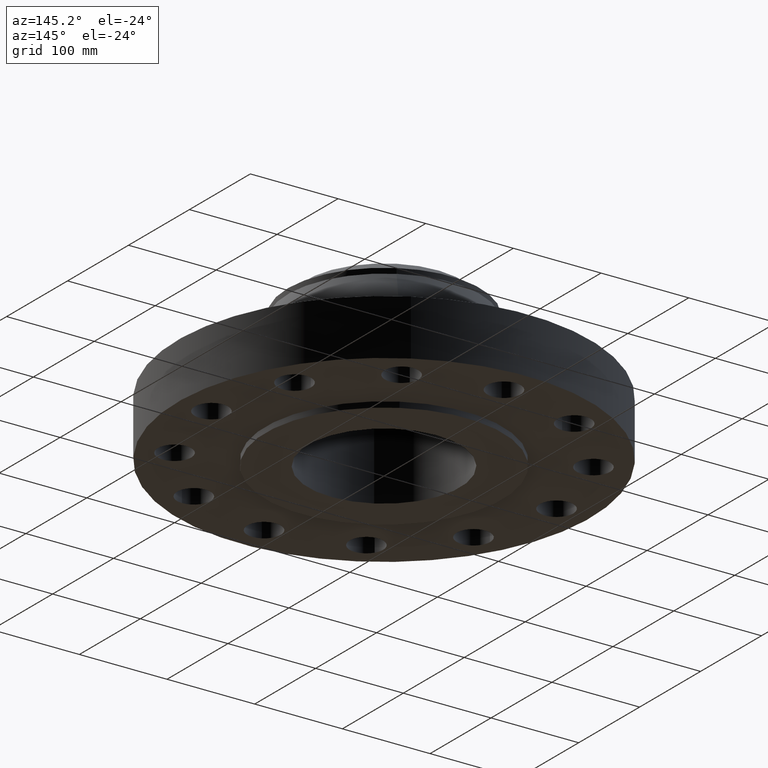
[diagram: clean part render]
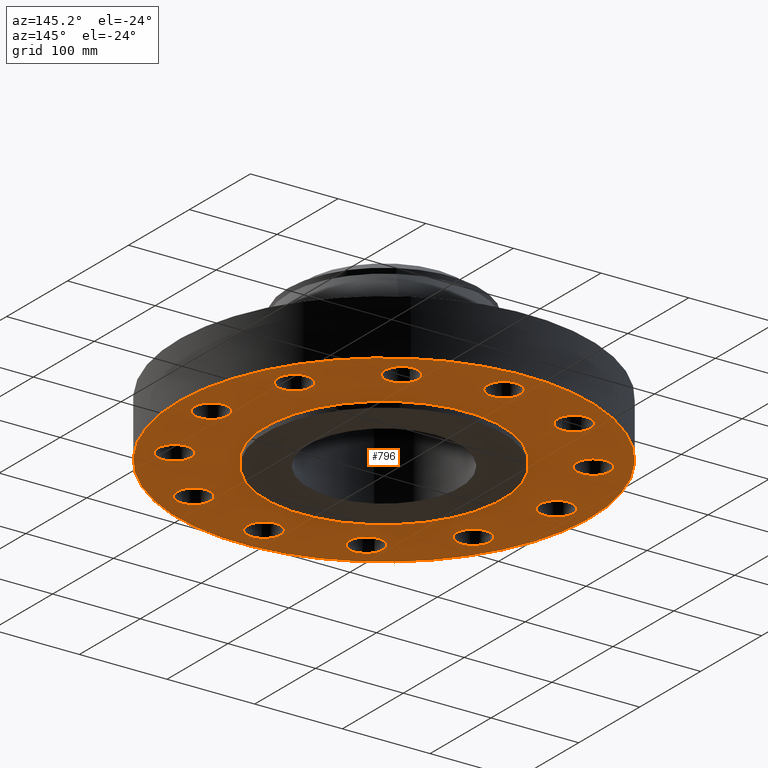
[diagram: same view with one face highlighted and labeled with its STEP entity id]
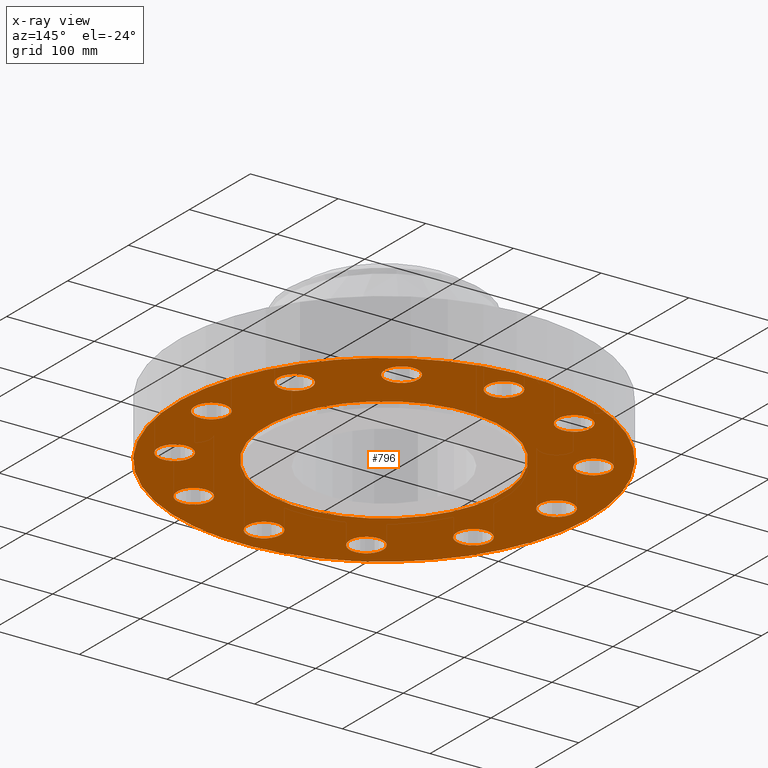
[diagram: x-ray of the same camera — body ghosted, the highlighted face saturated]
A machine part, auxiliary view. The second image highlights one B-rep face of the part: STEP entity #796.
The next image is the same camera in x-ray: the body ghosted, the highlighted face saturated — about 0% of this face is hidden behind the body in this view.
In plain terms, the highlighted planar face has unit normal (0, 0, -1).
Its self-contained STEP definition (entity closure, byte-faithful):
#51=AXIS2_PLACEMENT_3D('Circle Axis2P3D',#49,#50,$) ;
#77=AXIS2_PLACEMENT_3D('Circle Axis2P3D',#75,#76,$) ;
#99=AXIS2_PLACEMENT_3D('Circle Axis2P3D',#97,#98,$) ;
#134=AXIS2_PLACEMENT_3D('Circle Axis2P3D',#132,#133,$) ;
#552=AXIS2_PLACEMENT_3D('Circle Axis2P3D',#550,#551,$) ;
#571=AXIS2_PLACEMENT_3D('Circle Axis2P3D',#569,#570,$) ;
#584=AXIS2_PLACEMENT_3D('Plane Axis2P3D',#581,#582,#583) ;
#600=AXIS2_PLACEMENT_3D('Circle Axis2P3D',#598,#599,$) ;
#609=AXIS2_PLACEMENT_3D('Circle Axis2P3D',#607,#608,$) ;
#618=AXIS2_PLACEMENT_3D('Circle Axis2P3D',#616,#617,$) ;
#627=AXIS2_PLACEMENT_3D('Circle Axis2P3D',#625,#626,$) ;
#636=AXIS2_PLACEMENT_3D('Circle Axis2P3D',#634,#635,$) ;
#645=AXIS2_PLACEMENT_3D('Circle Axis2P3D',#643,#644,$) ;
#654=AXIS2_PLACEMENT_3D('Circle Axis2P3D',#652,#653,$) ;
#663=AXIS2_PLACEMENT_3D('Circle Axis2P3D',#661,#662,$) ;
#672=AXIS2_PLACEMENT_3D('Circle Axis2P3D',#670,#671,$) ;
#681=AXIS2_PLACEMENT_3D('Circle Axis2P3D',#679,#680,$) ;
#690=AXIS2_PLACEMENT_3D('Circle Axis2P3D',#688,#689,$) ;
#699=AXIS2_PLACEMENT_3D('Circle Axis2P3D',#697,#698,$) ;
#708=AXIS2_PLACEMENT_3D('Circle Axis2P3D',#706,#707,$) ;
#717=AXIS2_PLACEMENT_3D('Circle Axis2P3D',#715,#716,$) ;
#726=AXIS2_PLACEMENT_3D('Circle Axis2P3D',#724,#725,$) ;
#735=AXIS2_PLACEMENT_3D('Circle Axis2P3D',#733,#734,$) ;
#744=AXIS2_PLACEMENT_3D('Circle Axis2P3D',#742,#743,$) ;
#753=AXIS2_PLACEMENT_3D('Circle Axis2P3D',#751,#752,$) ;
#762=AXIS2_PLACEMENT_3D('Circle Axis2P3D',#760,#761,$) ;
#771=AXIS2_PLACEMENT_3D('Circle Axis2P3D',#769,#770,$) ;
#780=AXIS2_PLACEMENT_3D('Circle Axis2P3D',#778,#779,$) ;
#789=AXIS2_PLACEMENT_3D('Circle Axis2P3D',#787,#788,$) ;
#44=CARTESIAN_POINT('Vertex',(7.09181307861,0.359569153955,-2.79741234551E-016)) ;
#49=CARTESIAN_POINT('Axis2P3D Location',(7.75000000003,0.,0.)) ;
#53=CARTESIAN_POINT('Vertex',(8.40818692145,-0.359569153955,-2.79741234551E-016)) ;
#75=CARTESIAN_POINT('Axis2P3D Location',(7.75000000003,0.,0.)) ;
#97=CARTESIAN_POINT('Axis2P3D Location',(0.,0.,1.1189649382E-015)) ;
#101=CARTESIAN_POINT('Vertex',(-4.43468623211,-8.11763869752,1.1189649382E-015)) ;
#103=CARTESIAN_POINT('Vertex',(4.43468623211,8.11763869752,1.1189649382E-015)) ;
#132=CARTESIAN_POINT('Axis2P3D Location',(0.,0.,1.1189649382E-015)) ;
#547=CARTESIAN_POINT('Vertex',(-2.54814673769,-4.66435131647,5.59482469102E-016)) ;
#550=CARTESIAN_POINT('Axis2P3D Location',(0.,0.,5.59482469102E-016)) ;
#554=CARTESIAN_POINT('Vertex',(2.54814673769,4.66435131647,5.59482469102E-016)) ;
#569=CARTESIAN_POINT('Axis2P3D Location',(0.,0.,5.59482469102E-016)) ;
#581=CARTESIAN_POINT('Axis2P3D Location',(0.,5.31500000002,0.)) ;
#598=CARTESIAN_POINT('Axis2P3D Location',(6.71169687936,-3.87500000002,0.)) ;
#602=CARTESIAN_POINT('Vertex',(6.32147486194,-3.23451051756,0.)) ;
#604=CARTESIAN_POINT('Vertex',(7.10191889677,-4.51548948247,-2.79741234551E-016)) ;
#607=CARTESIAN_POINT('Axis2P3D Location',(6.71169687936,-3.87500000002,0.)) ;
#616=CARTESIAN_POINT('Axis2P3D Location',(3.87500000002,-6.71169687936,0.)) ;
#620=CARTESIAN_POINT('Vertex',(3.85730256105,-5.96190570799,0.)) ;
#622=CARTESIAN_POINT('Vertex',(3.89269743898,-7.46148805072,-2.79741234551E-016)) ;
#625=CARTESIAN_POINT('Axis2P3D Location',(3.87500000002,-6.71169687936,0.)) ;
#634=CARTESIAN_POINT('Axis2P3D Location',(-4.89547160465E-016,-7.75000000003,0.)) ;
#638=CARTESIAN_POINT('Vertex',(0.359569153955,-7.09181307861,0.)) ;
#640=CARTESIAN_POINT('Vertex',(-0.359569153955,-8.40818692145,-2.79741234551E-016)) ;
#643=CARTESIAN_POINT('Axis2P3D Location',(-8.39223703654E-016,-7.75000000003,0.)) ;
#652=CARTESIAN_POINT('Axis2P3D Location',(-3.87500000002,-6.71169687936,0.)) ;
#656=CARTESIAN_POINT('Vertex',(-3.23451051756,-6.32147486194,0.)) ;
#658=CARTESIAN_POINT('Vertex',(-4.51548948247,-7.10191889677,-2.51767111096E-015)) ;
#661=CARTESIAN_POINT('Axis2P3D Location',(-3.87500000002,-6.71169687936,0.)) ;
#670=CARTESIAN_POINT('Axis2P3D Location',(-6.71169687936,-3.87500000002,0.)) ;
#674=CARTESIAN_POINT('Vertex',(-5.96190570799,-3.85730256105,0.)) ;
#676=CARTESIAN_POINT('Vertex',(-7.46148805072,-3.89269743898,-2.79741234551E-016)) ;
#679=CARTESIAN_POINT('Axis2P3D Location',(-6.71169687936,-3.87500000002,0.)) ;
#688=CARTESIAN_POINT('Axis2P3D Location',(-7.75000000003,-1.1189649382E-015,0.)) ;
#692=CARTESIAN_POINT('Vertex',(-7.09181307861,-0.359569153955,0.)) ;
#694=CARTESIAN_POINT('Vertex',(-8.40818692145,0.359569153955,-2.79741234551E-016)) ;
#697=CARTESIAN_POINT('Axis2P3D Location',(-7.75000000003,-1.1189649382E-015,0.)) ;
#706=CARTESIAN_POINT('Axis2P3D Location',(-6.71169687936,3.87500000002,0.)) ;
#710=CARTESIAN_POINT('Vertex',(-6.32147486194,3.23451051756,0.)) ;
#712=CARTESIAN_POINT('Vertex',(-7.10191889677,4.51548948247,-2.79741234551E-016)) ;
#715=CARTESIAN_POINT('Axis2P3D Location',(-6.71169687936,3.87500000002,0.)) ;
#724=CARTESIAN_POINT('Axis2P3D Location',(-3.87500000002,6.71169687936,0.)) ;
#728=CARTESIAN_POINT('Vertex',(-3.85730256105,5.96190570799,0.)) ;
#730=CARTESIAN_POINT('Vertex',(-3.89269743898,7.46148805072,-2.79741234551E-016)) ;
#733=CARTESIAN_POINT('Axis2P3D Location',(-3.87500000002,6.71169687936,0.)) ;
#742=CARTESIAN_POINT('Axis2P3D Location',(-5.59482469102E-016,7.75000000003,0.)) ;
#746=CARTESIAN_POINT('Vertex',(-0.359569153955,7.09181307861,0.)) ;
#748=CARTESIAN_POINT('Vertex',(0.359569153955,8.40818692145,-2.79741234551E-016)) ;
#751=CARTESIAN_POINT('Axis2P3D Location',(-2.09805925913E-016,7.75000000003,0.)) ;
#760=CARTESIAN_POINT('Axis2P3D Location',(3.87500000002,6.71169687936,0.)) ;
#764=CARTESIAN_POINT('Vertex',(3.23451051756,6.32147486194,0.)) ;
#766=CARTESIAN_POINT('Vertex',(4.51548948247,7.10191889677,-2.79741234551E-016)) ;
#769=CARTESIAN_POINT('Axis2P3D Location',(3.87500000002,6.71169687936,0.)) ;
#778=CARTESIAN_POINT('Axis2P3D Location',(6.71169687936,3.87500000002,0.)) ;
#782=CARTESIAN_POINT('Vertex',(5.96190570799,3.85730256105,0.)) ;
#784=CARTESIAN_POINT('Vertex',(7.46148805072,3.89269743898,-2.79741234551E-016)) ;
#787=CARTESIAN_POINT('Axis2P3D Location',(6.71169687936,3.87500000002,0.)) ;
#50=DIRECTION('Axis2P3D Direction',(0.,-0.,-0.0393700787402)) ;
#76=DIRECTION('Axis2P3D Direction',(0.,-0.,-0.0393700787402)) ;
#98=DIRECTION('Axis2P3D Direction',(0.,0.,-0.0393700787402)) ;
#133=DIRECTION('Axis2P3D Direction',(0.,0.,-0.0393700787402)) ;
#551=DIRECTION('Axis2P3D Direction',(0.,0.,-0.0393700787402)) ;
#570=DIRECTION('Axis2P3D Direction',(0.,0.,-0.0393700787402)) ;
#582=DIRECTION('Axis2P3D Direction',(0.,0.,-0.0393700787402)) ;
#583=DIRECTION('Axis2P3D XDirection',(0.0393700787402,0.,0.)) ;
#599=DIRECTION('Axis2P3D Direction',(0.,0.,-0.0393700787402)) ;
#608=DIRECTION('Axis2P3D Direction',(0.,0.,-0.0393700787402)) ;
#617=DIRECTION('Axis2P3D Direction',(0.,0.,-0.0393700787402)) ;
#626=DIRECTION('Axis2P3D Direction',(0.,0.,-0.0393700787402)) ;
#635=DIRECTION('Axis2P3D Direction',(0.,0.,-0.0393700787402)) ;
#644=DIRECTION('Axis2P3D Direction',(0.,0.,-0.0393700787402)) ;
#653=DIRECTION('Axis2P3D Direction',(0.,0.,-0.0393700787402)) ;
#662=DIRECTION('Axis2P3D Direction',(0.,0.,-0.0393700787402)) ;
#671=DIRECTION('Axis2P3D Direction',(0.,0.,-0.0393700787402)) ;
#680=DIRECTION('Axis2P3D Direction',(0.,0.,-0.0393700787402)) ;
#689=DIRECTION('Axis2P3D Direction',(0.,0.,-0.0393700787402)) ;
#698=DIRECTION('Axis2P3D Direction',(0.,0.,-0.0393700787402)) ;
#707=DIRECTION('Axis2P3D Direction',(0.,0.,-0.0393700787402)) ;
#716=DIRECTION('Axis2P3D Direction',(0.,0.,-0.0393700787402)) ;
#725=DIRECTION('Axis2P3D Direction',(0.,0.,-0.0393700787402)) ;
#734=DIRECTION('Axis2P3D Direction',(0.,0.,-0.0393700787402)) ;
#743=DIRECTION('Axis2P3D Direction',(0.,0.,-0.0393700787402)) ;
#752=DIRECTION('Axis2P3D Direction',(0.,0.,-0.0393700787402)) ;
#761=DIRECTION('Axis2P3D Direction',(0.,0.,-0.0393700787402)) ;
#770=DIRECTION('Axis2P3D Direction',(0.,0.,-0.0393700787402)) ;
#779=DIRECTION('Axis2P3D Direction',(0.,0.,-0.0393700787402)) ;
#788=DIRECTION('Axis2P3D Direction',(0.,0.,-0.0393700787402)) ;
#587=ORIENTED_EDGE('',*,*,#105,.T.) ;
#588=ORIENTED_EDGE('',*,*,#136,.T.) ;
#591=ORIENTED_EDGE('',*,*,#79,.F.) ;
#592=ORIENTED_EDGE('',*,*,#55,.F.) ;
#595=ORIENTED_EDGE('',*,*,#573,.F.) ;
#596=ORIENTED_EDGE('',*,*,#556,.F.) ;
#613=ORIENTED_EDGE('',*,*,#606,.F.) ;
#614=ORIENTED_EDGE('',*,*,#611,.F.) ;
#631=ORIENTED_EDGE('',*,*,#624,.F.) ;
#632=ORIENTED_EDGE('',*,*,#629,.F.) ;
#649=ORIENTED_EDGE('',*,*,#642,.F.) ;
#650=ORIENTED_EDGE('',*,*,#647,.F.) ;
#667=ORIENTED_EDGE('',*,*,#660,.F.) ;
#668=ORIENTED_EDGE('',*,*,#665,.F.) ;
#685=ORIENTED_EDGE('',*,*,#678,.F.) ;
#686=ORIENTED_EDGE('',*,*,#683,.F.) ;
#703=ORIENTED_EDGE('',*,*,#696,.F.) ;
#704=ORIENTED_EDGE('',*,*,#701,.F.) ;
#721=ORIENTED_EDGE('',*,*,#714,.F.) ;
#722=ORIENTED_EDGE('',*,*,#719,.F.) ;
#739=ORIENTED_EDGE('',*,*,#732,.F.) ;
#740=ORIENTED_EDGE('',*,*,#737,.F.) ;
#757=ORIENTED_EDGE('',*,*,#750,.F.) ;
#758=ORIENTED_EDGE('',*,*,#755,.F.) ;
#775=ORIENTED_EDGE('',*,*,#768,.F.) ;
#776=ORIENTED_EDGE('',*,*,#773,.F.) ;
#793=ORIENTED_EDGE('',*,*,#786,.F.) ;
#794=ORIENTED_EDGE('',*,*,#791,.F.) ;
#593=FACE_BOUND('',#590,.T.) ;
#597=FACE_BOUND('',#594,.T.) ;
#615=FACE_BOUND('',#612,.T.) ;
#633=FACE_BOUND('',#630,.T.) ;
#651=FACE_BOUND('',#648,.T.) ;
#669=FACE_BOUND('',#666,.T.) ;
#687=FACE_BOUND('',#684,.T.) ;
#705=FACE_BOUND('',#702,.T.) ;
#723=FACE_BOUND('',#720,.T.) ;
#741=FACE_BOUND('',#738,.T.) ;
#759=FACE_BOUND('',#756,.T.) ;
#777=FACE_BOUND('',#774,.T.) ;
#795=FACE_BOUND('',#792,.T.) ;
#796=ADVANCED_FACE('PartBody',(#589,#593,#597,#615,#633,#651,#669,#687,#705,#723,#741,#759,#777,#795),#585,.T.) ;
#52=CIRCLE('generated circle',#51,0.750000000003) ;
#78=CIRCLE('generated circle',#77,0.750000000003) ;
#100=CIRCLE('generated circle',#99,9.25000000004) ;
#135=CIRCLE('generated circle',#134,9.25000000004) ;
#553=CIRCLE('generated circle',#552,5.31500000002) ;
#572=CIRCLE('generated circle',#571,5.31500000002) ;
#601=CIRCLE('generated circle',#600,0.750000000003) ;
#610=CIRCLE('generated circle',#609,0.750000000003) ;
#619=CIRCLE('generated circle',#618,0.750000000003) ;
#628=CIRCLE('generated circle',#627,0.750000000003) ;
#637=CIRCLE('generated circle',#636,0.750000000003) ;
#646=CIRCLE('generated circle',#645,0.750000000003) ;
#655=CIRCLE('generated circle',#654,0.750000000003) ;
#664=CIRCLE('generated circle',#663,0.750000000003) ;
#673=CIRCLE('generated circle',#672,0.750000000003) ;
#682=CIRCLE('generated circle',#681,0.750000000003) ;
#691=CIRCLE('generated circle',#690,0.750000000003) ;
#700=CIRCLE('generated circle',#699,0.750000000003) ;
#709=CIRCLE('generated circle',#708,0.750000000003) ;
#718=CIRCLE('generated circle',#717,0.750000000003) ;
#727=CIRCLE('generated circle',#726,0.750000000003) ;
#736=CIRCLE('generated circle',#735,0.750000000003) ;
#745=CIRCLE('generated circle',#744,0.750000000003) ;
#754=CIRCLE('generated circle',#753,0.750000000003) ;
#763=CIRCLE('generated circle',#762,0.750000000003) ;
#772=CIRCLE('generated circle',#771,0.750000000003) ;
#781=CIRCLE('generated circle',#780,0.750000000003) ;
#790=CIRCLE('generated circle',#789,0.750000000003) ;
#55=EDGE_CURVE('',#45,#54,#52,.T.) ;
#79=EDGE_CURVE('',#54,#45,#78,.T.) ;
#105=EDGE_CURVE('',#102,#104,#100,.T.) ;
#136=EDGE_CURVE('',#104,#102,#135,.T.) ;
#556=EDGE_CURVE('',#548,#555,#553,.T.) ;
#573=EDGE_CURVE('',#555,#548,#572,.T.) ;
#606=EDGE_CURVE('',#603,#605,#601,.T.) ;
#611=EDGE_CURVE('',#605,#603,#610,.T.) ;
#624=EDGE_CURVE('',#621,#623,#619,.T.) ;
#629=EDGE_CURVE('',#623,#621,#628,.T.) ;
#642=EDGE_CURVE('',#639,#641,#637,.T.) ;
#647=EDGE_CURVE('',#641,#639,#646,.T.) ;
#660=EDGE_CURVE('',#657,#659,#655,.T.) ;
#665=EDGE_CURVE('',#659,#657,#664,.T.) ;
#678=EDGE_CURVE('',#675,#677,#673,.T.) ;
#683=EDGE_CURVE('',#677,#675,#682,.T.) ;
#696=EDGE_CURVE('',#693,#695,#691,.T.) ;
#701=EDGE_CURVE('',#695,#693,#700,.T.) ;
#714=EDGE_CURVE('',#711,#713,#709,.T.) ;
#719=EDGE_CURVE('',#713,#711,#718,.T.) ;
#732=EDGE_CURVE('',#729,#731,#727,.T.) ;
#737=EDGE_CURVE('',#731,#729,#736,.T.) ;
#750=EDGE_CURVE('',#747,#749,#745,.T.) ;
#755=EDGE_CURVE('',#749,#747,#754,.T.) ;
#768=EDGE_CURVE('',#765,#767,#763,.T.) ;
#773=EDGE_CURVE('',#767,#765,#772,.T.) ;
#786=EDGE_CURVE('',#783,#785,#781,.T.) ;
#791=EDGE_CURVE('',#785,#783,#790,.T.) ;
#586=EDGE_LOOP('',(#587,#588)) ;
#590=EDGE_LOOP('',(#591,#592)) ;
#594=EDGE_LOOP('',(#595,#596)) ;
#612=EDGE_LOOP('',(#613,#614)) ;
#630=EDGE_LOOP('',(#631,#632)) ;
#648=EDGE_LOOP('',(#649,#650)) ;
#666=EDGE_LOOP('',(#667,#668)) ;
#684=EDGE_LOOP('',(#685,#686)) ;
#702=EDGE_LOOP('',(#703,#704)) ;
#720=EDGE_LOOP('',(#721,#722)) ;
#738=EDGE_LOOP('',(#739,#740)) ;
#756=EDGE_LOOP('',(#757,#758)) ;
#774=EDGE_LOOP('',(#775,#776)) ;
#792=EDGE_LOOP('',(#793,#794)) ;
#589=FACE_OUTER_BOUND('',#586,.T.) ;
#585=PLANE('',#584) ;
#45=VERTEX_POINT('',#44) ;
#54=VERTEX_POINT('',#53) ;
#102=VERTEX_POINT('',#101) ;
#104=VERTEX_POINT('',#103) ;
#548=VERTEX_POINT('',#547) ;
#555=VERTEX_POINT('',#554) ;
#603=VERTEX_POINT('',#602) ;
#605=VERTEX_POINT('',#604) ;
#621=VERTEX_POINT('',#620) ;
#623=VERTEX_POINT('',#622) ;
#639=VERTEX_POINT('',#638) ;
#641=VERTEX_POINT('',#640) ;
#657=VERTEX_POINT('',#656) ;
#659=VERTEX_POINT('',#658) ;
#675=VERTEX_POINT('',#674) ;
#677=VERTEX_POINT('',#676) ;
#693=VERTEX_POINT('',#692) ;
#695=VERTEX_POINT('',#694) ;
#711=VERTEX_POINT('',#710) ;
#713=VERTEX_POINT('',#712) ;
#729=VERTEX_POINT('',#728) ;
#731=VERTEX_POINT('',#730) ;
#747=VERTEX_POINT('',#746) ;
#749=VERTEX_POINT('',#748) ;
#765=VERTEX_POINT('',#764) ;
#767=VERTEX_POINT('',#766) ;
#783=VERTEX_POINT('',#782) ;
#785=VERTEX_POINT('',#784) ;